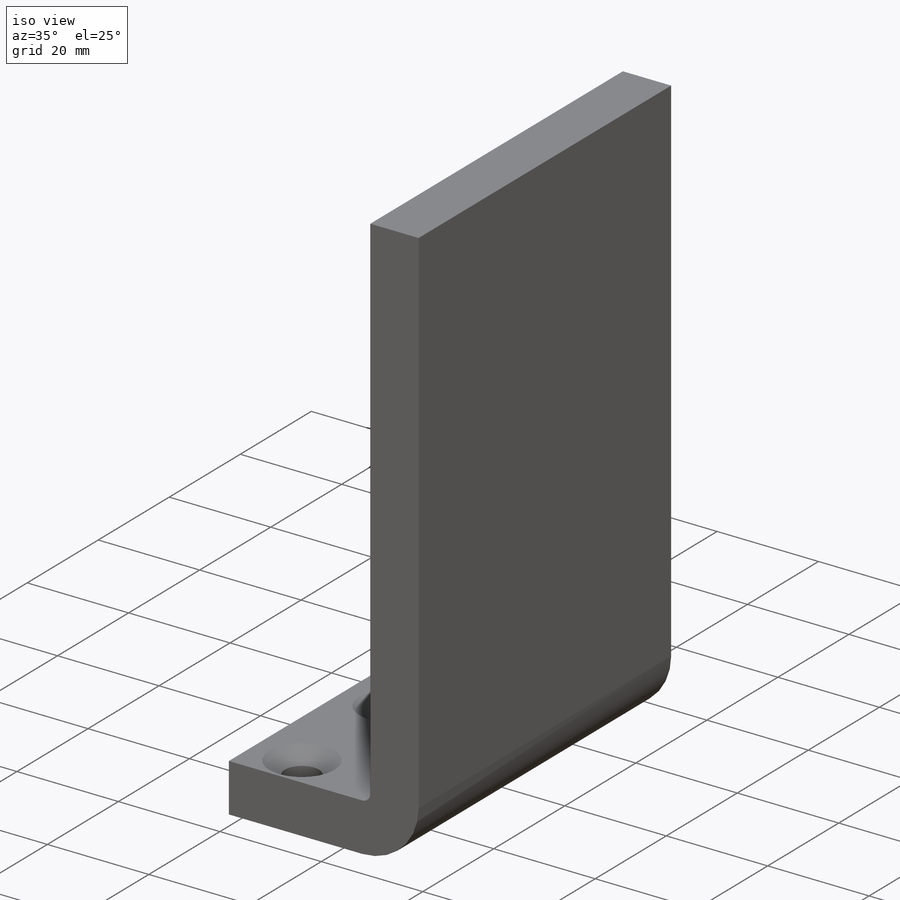
[diagram: iso view]
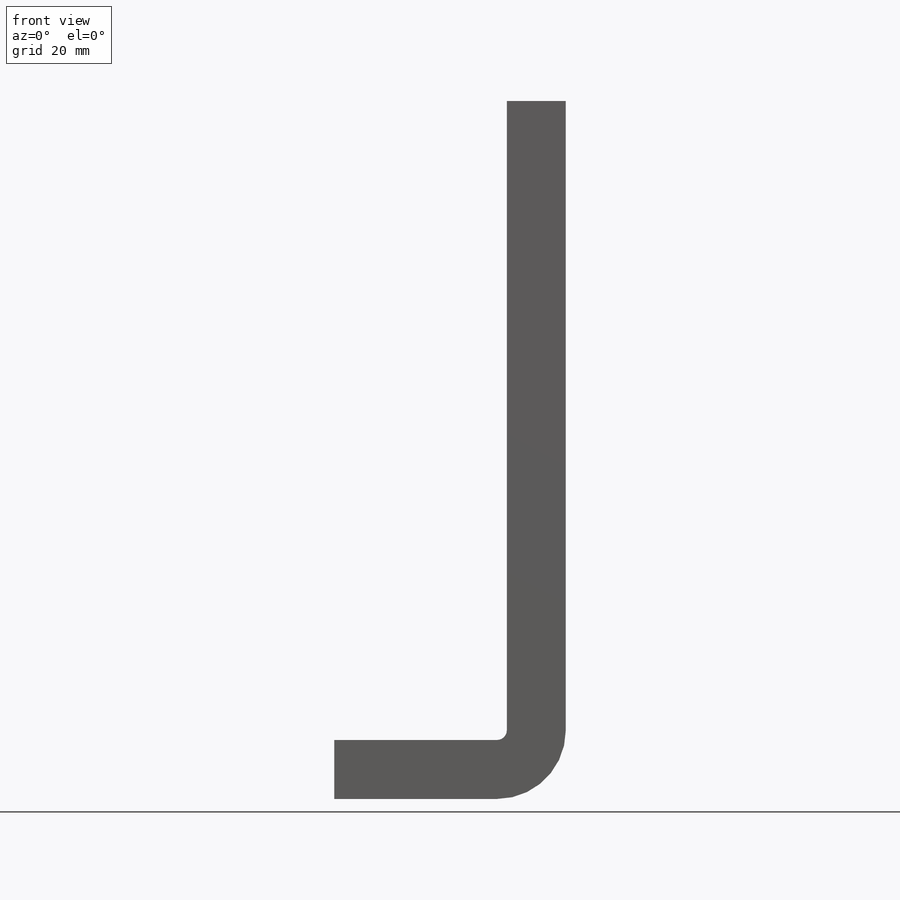
[diagram: front view]
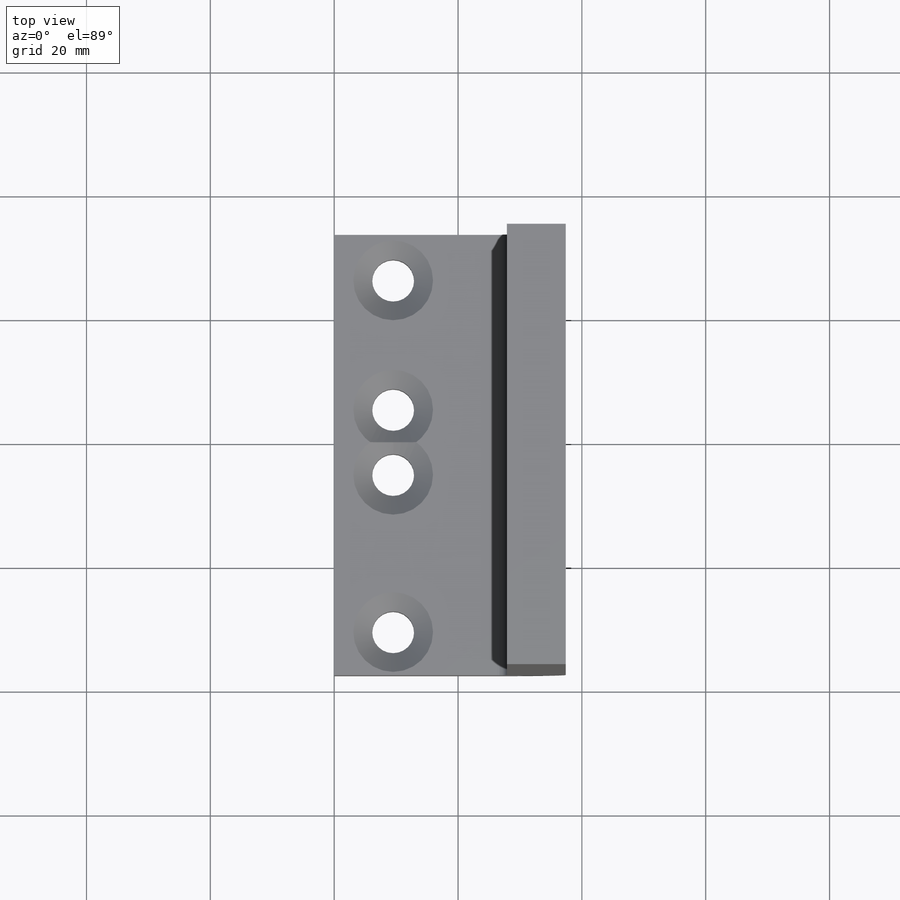
[diagram: top view]
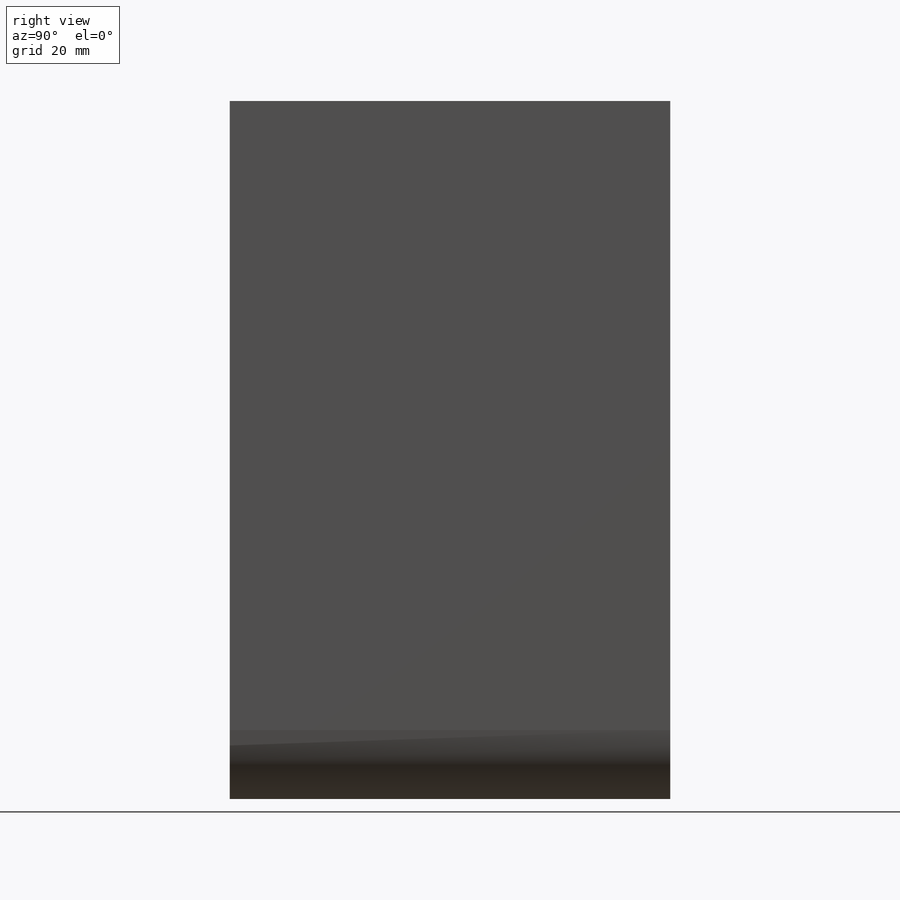
[diagram: right view]
SOLIDWORKS PART (.sldprt)
format: sldprt  version: not decoded by parser v0  size: 189,440 bytes
history: native  units: mm
features: sketch x5, material x1, extrude x1, hole x1, sweep x1 + 1 further entry (+10 scaffold rows collapsed)
feature tree (20):
  scaffold x10  (default folders/planes/origin — collapsed)
  material  "Material <not specified>"
  "Annotations"  RD1=101.6mm RD2=26.293415mm RD3=63.831087mm RD4=63.831087mm RD5=42.977404mm RD6=63.7794mm RD7=42.9006mm RD8=32.385mm RD9=6.985mm RD10=9.865163mm RD11=9.525mm RD12=71.12mm
  sketch  "Sketch1"  dims[c1.D1=~75.326063mm c1.D2=~32.866325mm c2.D1=~42.569238mm]
  extrude  "Boss-Extrude1"  Depth=9.525mm
  hole  "CSK for 1/4 Flat Head Machine Screw (100)1"  Diameter=6.7564mm Depth=9.525mm
  sketch  "Sketch3"
  sketch  "Sketch2"  dims[hole-wizard template sketch: 56 standard entries collapsed; hole parameters kept: c17.Near C'Sink Dia.=12.8778mm c17.D4=~3.666174mm c17.Near C'Sink Angle=100.0deg]
  sketch  "Sketch4"  dims[D1=~1.668126mm D2=101.6mm]
  sketch  "Sketch6"  dims[D1=9.525mm D2=71.12mm]
  sweep  "Sweep1"
decode coverage: 6 of 8 modeling features carry decoded parameters; 1 rows unclassified (native names shown)
note: ~ marks probable driven/reference dimensions
note: suppression state not decoded; provenance and decode notes live in map.json
